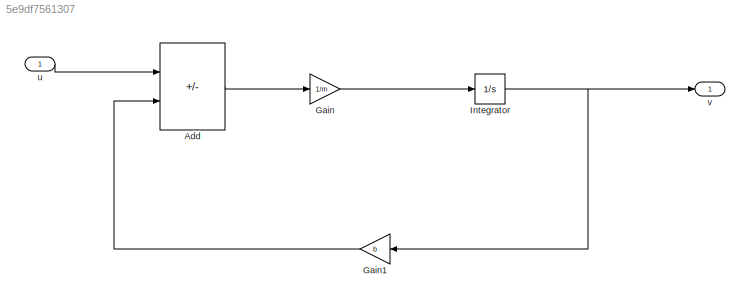
MODEL slx_5e9df7561307
KIND model
CONFIG AbsTol = auto
CONFIG EnableMultiTasking = off
CONFIG FixedStep = auto
CONFIG MaxStep = auto
CONFIG MinStep = auto
CONFIG RelTol = 1e-3
CONFIG SampleTimeConstraint = Unconstrained
CONFIG SolverName = VariableStepAuto
CONFIG StartTime = 0.0
CONFIG StopTime = 10.0
WORKSPACE source: mxarray member
WORKSPACE b = 50
WORKSPACE m = 1000
BLOCK [Sum] Add
  IconShape = rectangular
  Inputs = +-
  Ports = [2, 1]
BLOCK [Gain] Gain
  Gain = 1/m
BLOCK [Gain] Gain1
  Gain = b
BLOCK [Integrator] Integrator
  Ports = [1, 1]
BLOCK [Inport] u
  OutDataTypeStr = double
  PortDimensions = 1
  SamplingMode = Sample based
  SignalType = real
BLOCK [Outport] v
  OutDataTypeStr = double
  PortDimensions = 1
  SampleTime = 0
  SamplingMode = Sample based
  SignalType = real
LINE Add:1 -> Gain:1
LINE Gain1:1 -> Add:2
LINE Gain:1 -> Integrator:1
NET Integrator:1 -> Gain1:1, v:1
LINE u:1 -> Add:1
note: NET lines group one-source signal fan-out (src -> all destinations, sorted); 1:1 wires keep LINE
